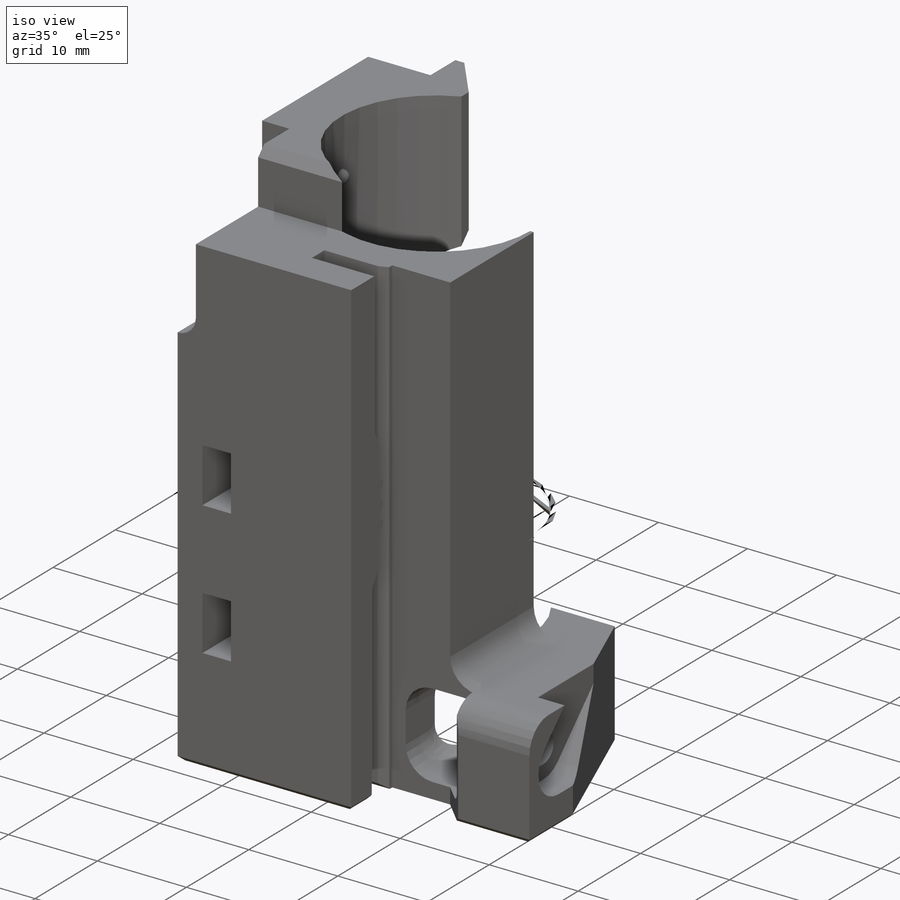
[diagram: iso view]
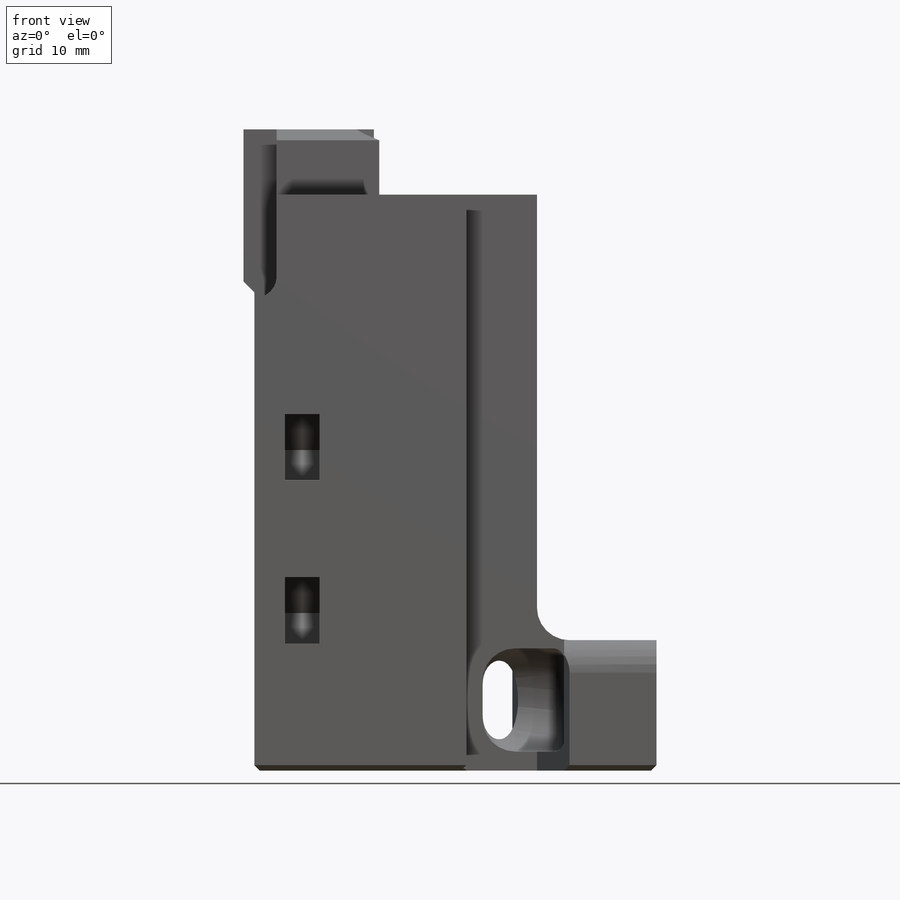
[diagram: front view]
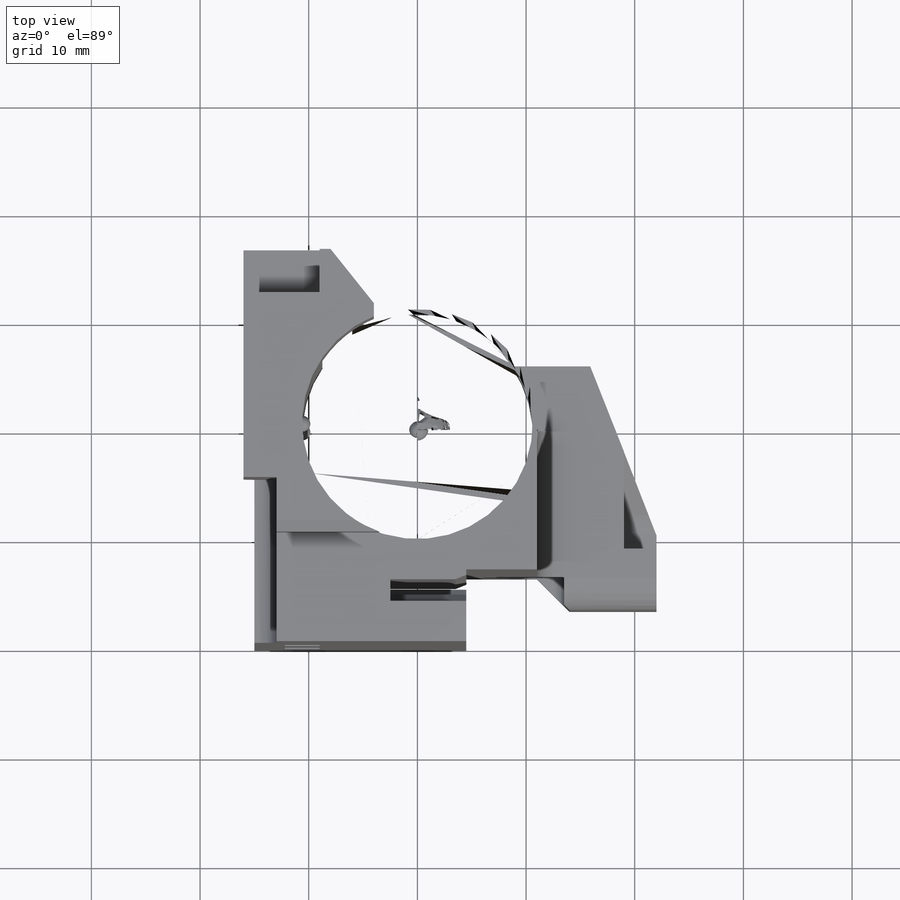
[diagram: top view]
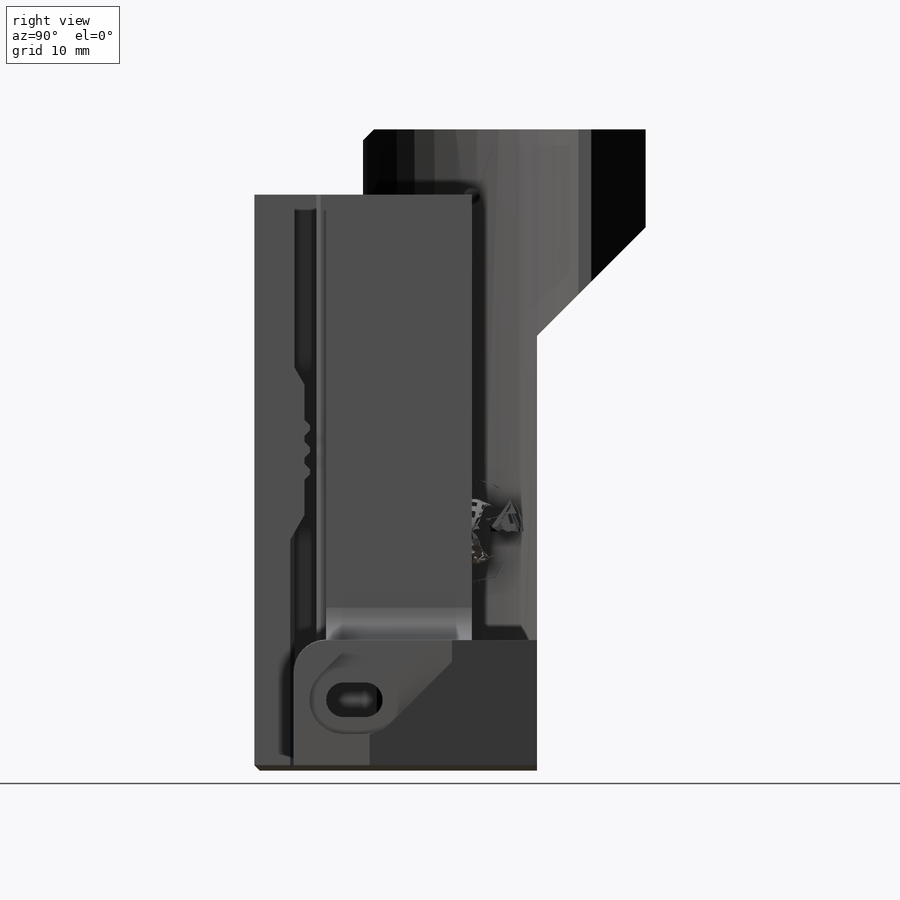
[diagram: right view]
SOLIDWORKS PART (.sldprt)
format: sldprt  version: not decoded by parser v0  size: 867,840 bytes
history: native  units: mm
features: sketch x21, cut_extrude x18, chamfer x11, fillet x5, extrude x2, material x1, mirror x1, revolve x1 (+13 scaffold rows collapsed)
feature tree (73):
  scaffold x13  (default folders/planes/origin — collapsed)
  material  "Custom Plastic"
  sketch  "Sketch2"  dims[c1.D1=21.0mm c1.D2=12.0mm c1.D11=17.0mm c2.D2=0.1mm c2.D3=16.0mm c2.D4=16.0mm c3.D3=4.5mm c3.D5=15.0mm c3.D6=13.4mm c3.D7=20.0mm c3.D8=16.0mm c3.D9=4.0mm c3.D10=6.0mm c3.D12=22.0mm c3.D13=4.0mm c3.D14=~1.487534mm c4.D14=45.0deg c4.D15=11.0mm c4.D16=3.0mm]
  extrude  "Boss-Extrude1"  Depth=37mm
  sketch  "Sketch3"  dims[D1=21.0mm]
  cut_extrude  "Cut-Extrude1"  Depth=20mm
  mirror  "Mirror1"
  sketch  "Sketch4"
  cut_extrude  "Cut-Extrude3"  Depth=11mm
  sketch  "Sketch5"  dims[c1.D1=0.5mm c1.D2=0.5mm c1.D3=2.032mm c1.D4=1.1mm c1.D5=8.0mm c1.D6=14.3mm c2.D5=2.0mm c2.D7=6.0mm c2.D8=0.5mm c3.D8=150.0deg]
  cut_extrude  "Cut-Extrude5"  Depth=7mm
  chamfer  "Chamfer1"  Distance=1.2mm Angle=45deg
  chamfer  "Chamfer3"  Distance=0.5mm Angle=45deg
  sketch  "Sketch6"  dims[D2=3.3mm D1=15.0mm D3=13.0mm]
  cut_extrude  "Cut-Extrude6"  Depth=10mm
  sketch  "Sketch7"  dims[D1=5.6mm D2=0.4mm D3=0.5mm D4=0.5mm]
  cut_extrude  "Cut-Extrude7"  Depth=3.2mm
  sketch  "Sketch9"  dims[c1.D1=9.0mm c1.D2=6.0mm c1.D3=10.4mm c2.D3=45.0deg]
  cut_extrude  "Cut-Extrude9"  Depth=12mm
  sketch  "Sketch12"  dims[D1=24.0mm D2=12.0mm D3=3.0mm D4=5.0mm]
  extrude  "Boss-Extrude2"  Depth=1mm
  sketch  "Sketch10"  dims[D1=7.0mm D2=0.8mm D3=0.8mm]
  cut_extrude  "Cut-Extrude10"  Depth=4mm
  sketch  "Sketch11"  dims[c1.D3=~1.843485mm c1.D4=2.5mm c1.D1=2.5mm c1.D2=15.0mm c2.D3=5.0mm c2.D2=7.0mm c3.D3=10.0mm]
  cut_extrude  "Cut-Extrude11"  Depth=4mm
  chamfer  "Chamfer4"  Distance=3mm Angle=45deg
  sketch  "Sketch13"
  cut_extrude  "Cut-Extrude12"  Depth=6mm
  chamfer  "Chamfer5"  Distance=1mm Angle=45deg
  sketch  "Sketch15"  dims[D1=11.0mm D2=4.0mm]
  cut_extrude  "Cut-Extrude14"  Depth=12mm
  chamfer  "Chamfer6"  Distance=1mm Angle=45deg
  chamfer  "Chamfer7"  Distance=0.4mm
  chamfer  "Chamfer10"  Distance=0.4mm
  sketch  "Sketch17"  dims[c1.D2=9.0mm c1.D3=1.65mm c1.D1=11.05mm c2.D3=9.45mm c2.D4=2.5mm]
  cut_extrude  "Cut-Extrude16"  Depth=6mm
  fillet  "Fillet2"  Radius=4.5mm
  sketch  "Sketch18"  dims[D2=5.6mm D1=0.2mm]
  cut_extrude  "Cut-Extrude17"  Depth=0.5mm
  chamfer  "Chamfer14"  Distance=1mm Angle=45deg
  sketch  "Sketch19"  dims[D1=4.0mm D2=2.05mm D3=2.0mm]
  cut_extrude  "Cut-Extrude18"  Depth=15mm
  chamfer  "Chamfer15"  Distance=4mm
  sketch  "Sketch20"  dims[c1.D2=1.5mm c1.D3=0.75mm c1.D1=44.7mm c2.D3=8.15mm]
  revolve  "Revolve2"  Angle=360deg
  fillet  "Fillet3"  Radius=3mm
  sketch  "Sketch21"  dims[c1.D2=9.0mm c1.D3=4.75mm c1.D1=15.4mm c2.D2=~1.636281mm c2.D4=1.0mm c2.D5=6.5mm]
  cut_extrude  "Cut-Extrude19"  Depth=5mm
  sketch  "Sketch22"  dims[D2=1.6mm D1=0.1mm D3=2.0mm]
  cut_extrude  "Cut-Extrude20"  [1 undecoded]
  sketch  "Sketch23"  dims[c1.D1=3.15mm c1.D2=2.0mm c2.D2=45.0deg]
  cut_extrude  "Cut-Extrude21"  Depth=3mm
  sketch  "Sketch24"  dims[c1.D1=~3.86986mm c2.D1=45.0deg]
  cut_extrude  "Cut-Extrude22"  Depth=3mm
  sketch  "Sketch25"
  cut_extrude  "Cut-Extrude23"  [1 undecoded]
  chamfer  "Chamfer17"  Distance=1mm Angle=45deg
  fillet  "Fillet4"  Radius=3mm
  chamfer  "Chamfer18"  Distance=0.5mm Angle=45deg
  fillet  "Fillet5"  Radius=1mm
  fillet  "Fillet6"  Radius=3mm
decode coverage: 53 of 59 modeling features carry decoded parameters
note: ~ marks probable driven/reference dimensions
note: 2 parameter values undecoded
note: suppression state not decoded; provenance and decode notes live in map.json
